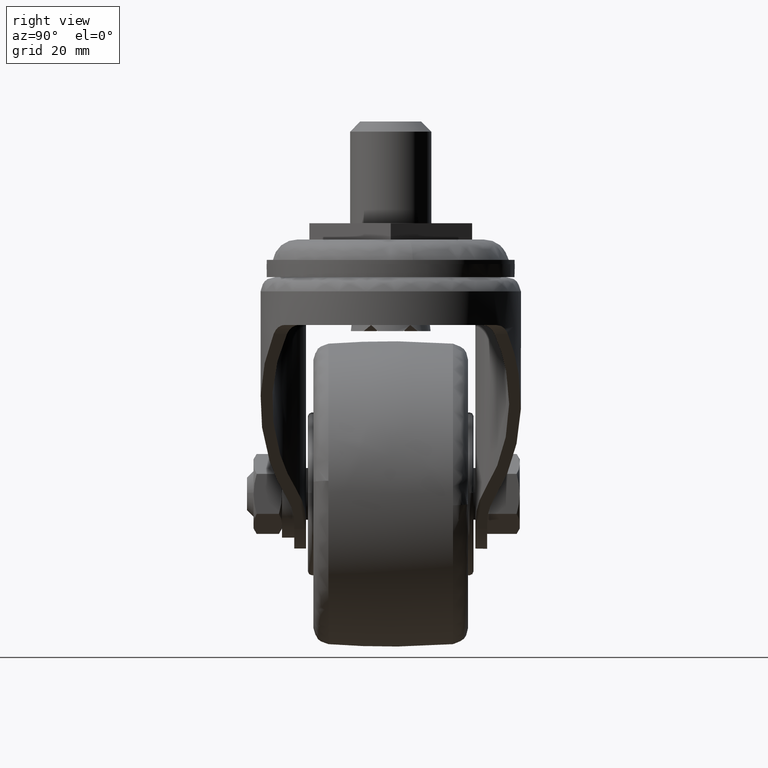
[diagram: clean part render]
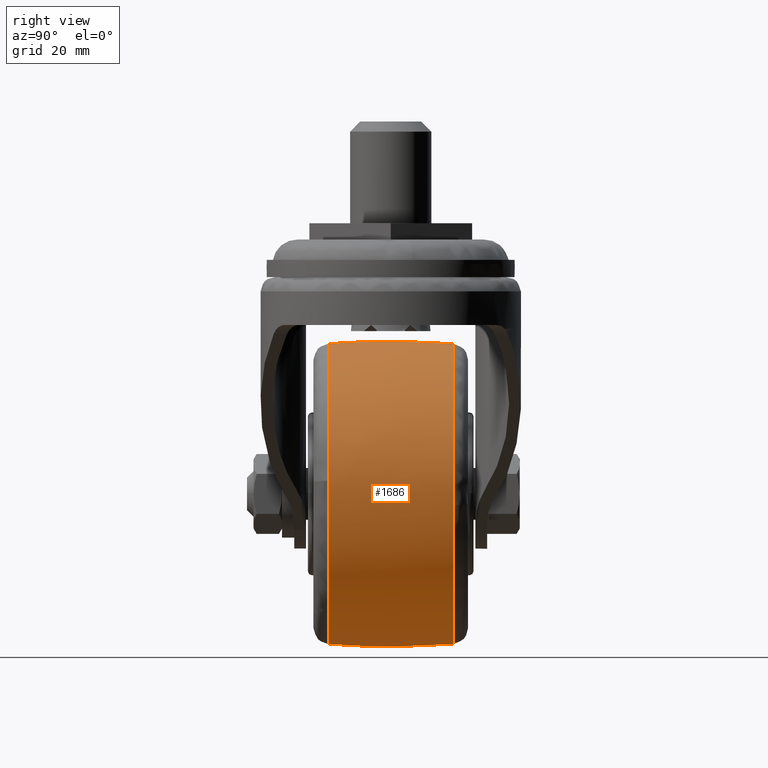
[diagram: same view with one face highlighted and labeled with its STEP entity id]
A machine part, right view. The second image highlights one B-rep face of the part: STEP entity #1686.
In plain terms, the highlighted face is a freeform B-spline surface patch.
Its self-contained STEP definition (entity closure, byte-faithful):
#1464=CARTESIAN_POINT('',(-35.999985999999893,-15.306125743734640,-25.586553826686579));
#1465=VERTEX_POINT('',#1464);
#1496=CARTESIAN_POINT('',(0.770740485812804,-15.306119690342641,-59.257126943534388));
#1497=VERTEX_POINT('',#1496);
#1511=CARTESIAN_POINT('',(-35.999985999999893,-15.306125743734640,-25.586553826686579));
#1512=CARTESIAN_POINT('',(-2.198724972059391,-15.306122717048375,-25.586553811789170));
#1513=CARTESIAN_POINT('',(0.770740485812804,-15.306119690342641,-59.257126943534388));
#1521=(BOUNDED_CURVE()B_SPLINE_CURVE(2,(#1511,#1512,#1513),.UNSPECIFIED.,.F.,.U.)B_SPLINE_CURVE_WITH_KNOTS((3,3),(0.0,0.234718535641439),.UNSPECIFIED.)CURVE()GEOMETRIC_REPRESENTATION_ITEM()RATIONAL_B_SPLINE_CURVE((1.0,0.725010130323196,0.966382016860548))REPRESENTATION_ITEM(''));
#1522=EDGE_CURVE('',#1465,#1497,#1521,.T.);
#1556=CARTESIAN_POINT('',(-35.999985999999893,-15.306125743691871,-99.413446173316700));
#1557=VERTEX_POINT('',#1556);
#1571=CARTESIAN_POINT('',(0.770740485812804,-15.306119690342641,-59.257126943534388));
#1572=CARTESIAN_POINT('',(0.913460757239064,-15.306119812316879,-60.875422866184707));
#1573=CARTESIAN_POINT('',(0.913460749804783,-15.306119945521740,-62.499999971462820));
#1574=CARTESIAN_POINT('',(0.913460580883931,-15.306122972186573,-99.413446159675274));
#1575=CARTESIAN_POINT('',(-35.999985999999893,-15.306125743691871,-99.413446173316700));
#1583=(BOUNDED_CURVE()B_SPLINE_CURVE(2,(#1571,#1572,#1573,#1574,#1575),.UNSPECIFIED.,.F.,.U.)B_SPLINE_CURVE_WITH_KNOTS((3,2,3),(0.234718535641439,0.250000000000000,0.500000000000000),.UNSPECIFIED.)CURVE()GEOMETRIC_REPRESENTATION_ITEM()RATIONAL_B_SPLINE_CURVE((0.966382016860548,0.982096650863352,1.0,0.707106781186548,1.0))REPRESENTATION_ITEM(''));
#1584=EDGE_CURVE('',#1497,#1557,#1583,.T.);
#1593=CARTESIAN_POINT('',(-37.028531614336856,16.830038166259548,-25.709383524155257));
#1594=CARTESIAN_POINT('',(-37.068266305584423,7.763471E-015,-24.288091394668140));
#1595=CARTESIAN_POINT('',(-37.028531614336856,-16.830038166259538,-25.709383524155257));
#1596=CARTESIAN_POINT('',(-36.517253803244365,16.830038166259552,-25.709383524155257));
#1597=CARTESIAN_POINT('',(-36.537236851315079,7.808684E-015,-24.288091394668147));
#1598=CARTESIAN_POINT('',(-36.517253803244365,-16.830038166259531,-25.709383524155257));
#1599=CARTESIAN_POINT('',(0.790630475844843,16.830038166259552,-25.709383524155246));
#1600=CARTESIAN_POINT('',(2.211922605331956,1.110784E-014,-24.288091394668140));
#1601=CARTESIAN_POINT('',(0.790630475844844,-16.830038166259541,-25.709383524155246));
#1602=CARTESIAN_POINT('',(0.790630475844843,16.830038166259541,-62.500000000000000));
#1603=CARTESIAN_POINT('',(2.211922605331957,7.854426E-015,-62.500000000000007));
#1604=CARTESIAN_POINT('',(0.790630475844844,-16.830038166259541,-62.500000000000000));
#1605=CARTESIAN_POINT('',(0.790630475844854,16.830038166259552,-99.290616475844743));
#1606=CARTESIAN_POINT('',(2.211922605331964,1.110784E-014,-100.711908605331870));
#1607=CARTESIAN_POINT('',(0.790630475844850,-16.830038166259541,-99.290616475844743));
#1608=CARTESIAN_POINT('',(-36.517253803244351,16.830038166259552,-99.290616475844757));
#1609=CARTESIAN_POINT('',(-36.537236851315072,7.808684E-015,-100.711908605331870));
#1610=CARTESIAN_POINT('',(-36.517253803244351,-16.830038166259531,-99.290616475844757));
#1611=CARTESIAN_POINT('',(-37.028531614336856,16.830038166259552,-99.290616475844743));
#1612=CARTESIAN_POINT('',(-37.068266305584423,7.763471E-015,-100.711908605331870));
#1613=CARTESIAN_POINT('',(-37.028531614336856,-16.830038166259527,-99.290616475844743));
#1621=(BOUNDED_SURFACE()B_SPLINE_SURFACE(2,2,((#1593,#1596,#1599,#1602,#1605,#1608,#1611),(#1594,#1597,#1600,#1603,#1606,#1609,#1612),(#1595,#1598,#1601,#1604,#1607,#1610,#1613)),.UNSPECIFIED.,.F.,.F.,.U.)B_SPLINE_SURFACE_WITH_KNOTS((3,3),(3,1,2,1,3),(0.0,33.719877145728383),(0.0,1.242640687119303,63.374675043083563,125.506709399047810,126.749350086167100),.UNSPECIFIED.)GEOMETRIC_REPRESENTATION_ITEM()RATIONAL_B_SPLINE_SURFACE(((0.918496294527827,0.913178173468185,0.641953999426455,0.907860052408543,0.641953999426455,0.913178173468185,0.918496294527827),(0.915238463836149,0.909939205713803,0.639677041474162,0.904639947591457,0.639677041474162,0.909939205713802,0.915238463836148),(0.918496294527827,0.913178173468185,0.641953999426455,0.907860052408543,0.641953999426455,0.913178173468185,0.918496294527827)))REPRESENTATION_ITEM('')SURFACE());
#1622=CARTESIAN_POINT('',(-35.999985999999900,15.306133715629450,-25.586554438575678));
#1623=VERTEX_POINT('',#1622);
#1624=CARTESIAN_POINT('',(-35.999985999999900,15.306133715629453,-25.586554438575671));
#1625=CARTESIAN_POINT('',(-35.999985999999907,0.000004009430431,-24.411720578740745));
#1626=CARTESIAN_POINT('',(-35.999985999999900,-15.306125743734624,-25.586553826686558));
#1634=(BOUNDED_CURVE()B_SPLINE_CURVE(2,(#1624,#1625,#1626),.UNSPECIFIED.,.F.,.U.)B_SPLINE_CURVE_WITH_KNOTS((3,3),(0.440426763049057,0.559573205832145),.UNSPECIFIED.)CURVE()GEOMETRIC_REPRESENTATION_ITEM()RATIONAL_B_SPLINE_CURVE((0.907580863960305,0.904919136734888,0.907580862569920))REPRESENTATION_ITEM(''));
#1635=EDGE_CURVE('',#1623,#1465,#1634,.T.);
#1636=ORIENTED_EDGE('',*,*,#1635,.T.);
#1637=ORIENTED_EDGE('',*,*,#1522,.T.);
#1638=ORIENTED_EDGE('',*,*,#1584,.T.);
#1639=CARTESIAN_POINT('',(-35.999985999999900,15.306133715487130,-99.413445561435253));
#1640=VERTEX_POINT('',#1639);
#1641=CARTESIAN_POINT('',(-35.999985999999886,15.306133715487162,-99.413445561435552));
#1642=CARTESIAN_POINT('',(-35.999985999999893,0.000004009380357,-100.588279421252110));
#1643=CARTESIAN_POINT('',(-35.999985999999900,-15.306125743691853,-99.413446173316729));
#1651=(BOUNDED_CURVE()B_SPLINE_CURVE(2,(#1641,#1642,#1643),.UNSPECIFIED.,.F.,.U.)B_SPLINE_CURVE_WITH_KNOTS((3,3),(0.440426763049613,0.559573205831978),.UNSPECIFIED.)CURVE()GEOMETRIC_REPRESENTATION_ITEM()RATIONAL_B_SPLINE_CURVE((0.907580863960280,0.904919136734904,0.907580862569912))REPRESENTATION_ITEM(''));
#1652=EDGE_CURVE('',#1640,#1557,#1651,.T.);
#1653=ORIENTED_EDGE('',*,*,#1652,.F.);
#1654=CARTESIAN_POINT('',(0.808585547259745,15.306133868629500,-65.280567341314821));
#1655=VERTEX_POINT('',#1654);
#1656=CARTESIAN_POINT('',(0.808585547259745,15.306133868629496,-65.280567341314821));
#1657=CARTESIAN_POINT('',(-1.769856340123237,15.306133792025413,-99.413445544799657));
#1658=CARTESIAN_POINT('',(-35.999985999999900,15.306133715487130,-99.413445561435253));
#1666=(BOUNDED_CURVE()B_SPLINE_CURVE(2,(#1656,#1657,#1658),.UNSPECIFIED.,.F.,.U.)B_SPLINE_CURVE_WITH_KNOTS((3,3),(0.263129819473425,0.500000000000000),.UNSPECIFIED.)CURVE()GEOMETRIC_REPRESENTATION_ITEM()RATIONAL_B_SPLINE_CURVE((0.970850679118833,0.722489321538591,1.0))REPRESENTATION_ITEM(''));
#1667=EDGE_CURVE('',#1655,#1640,#1666,.T.);
#1668=ORIENTED_EDGE('',*,*,#1667,.F.);
#1669=CARTESIAN_POINT('',(-35.999985999999900,15.306133715629450,-25.586554438575678));
#1670=CARTESIAN_POINT('',(0.913460221994494,15.306133786604006,-25.586554423149373));
#1671=CARTESIAN_POINT('',(0.913460001775942,15.306133863071130,-62.499999967943559));
#1672=CARTESIAN_POINT('',(0.913459993469977,15.306133865955236,-63.892261424941616));
#1673=CARTESIAN_POINT('',(0.808585547259745,15.306133868629496,-65.280567341314821));
#1681=(BOUNDED_CURVE()B_SPLINE_CURVE(2,(#1669,#1670,#1671,#1672,#1673),.UNSPECIFIED.,.F.,.U.)B_SPLINE_CURVE_WITH_KNOTS((3,2,3),(0.0,0.250000000000000,0.263129819473425),.UNSPECIFIED.)CURVE()GEOMETRIC_REPRESENTATION_ITEM()RATIONAL_B_SPLINE_CURVE((1.0,0.707106781186547,1.0,0.984617459647957,0.970850679118833))REPRESENTATION_ITEM(''));
#1682=EDGE_CURVE('',#1623,#1655,#1681,.T.);
#1683=ORIENTED_EDGE('',*,*,#1682,.F.);
#1684=EDGE_LOOP('',(#1636,#1637,#1638,#1653,#1668,#1683));
#1685=FACE_OUTER_BOUND('',#1684,.T.);
#1686=ADVANCED_FACE('',(#1685),#1621,.T.);